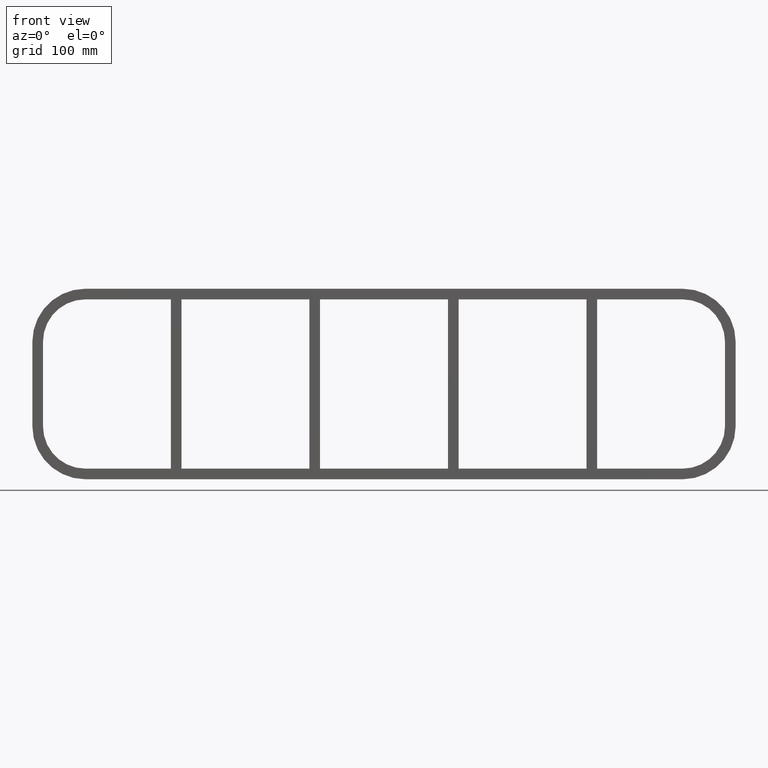
[diagram: clean part render]
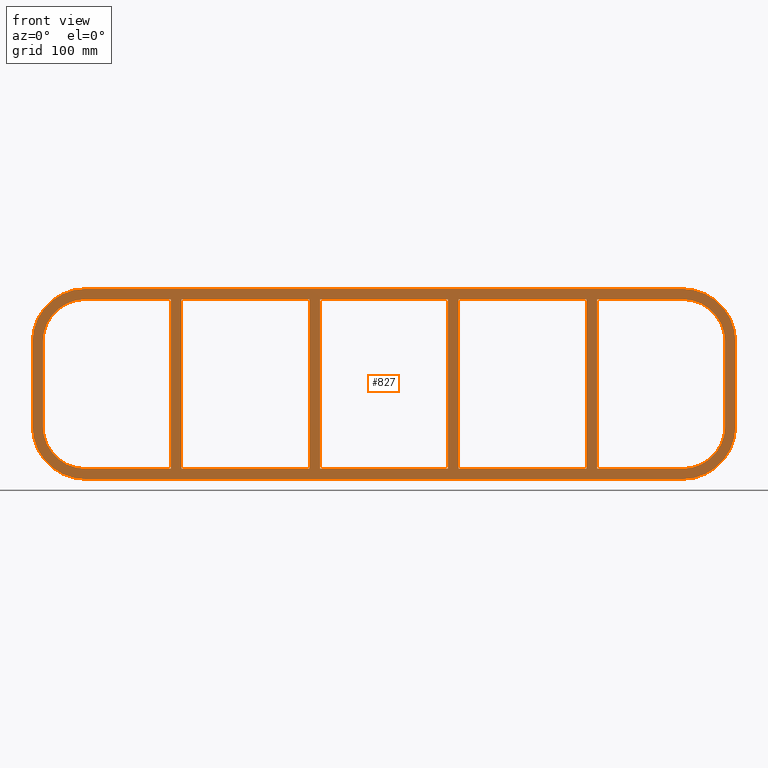
[diagram: same view with one face highlighted and labeled with its STEP entity id]
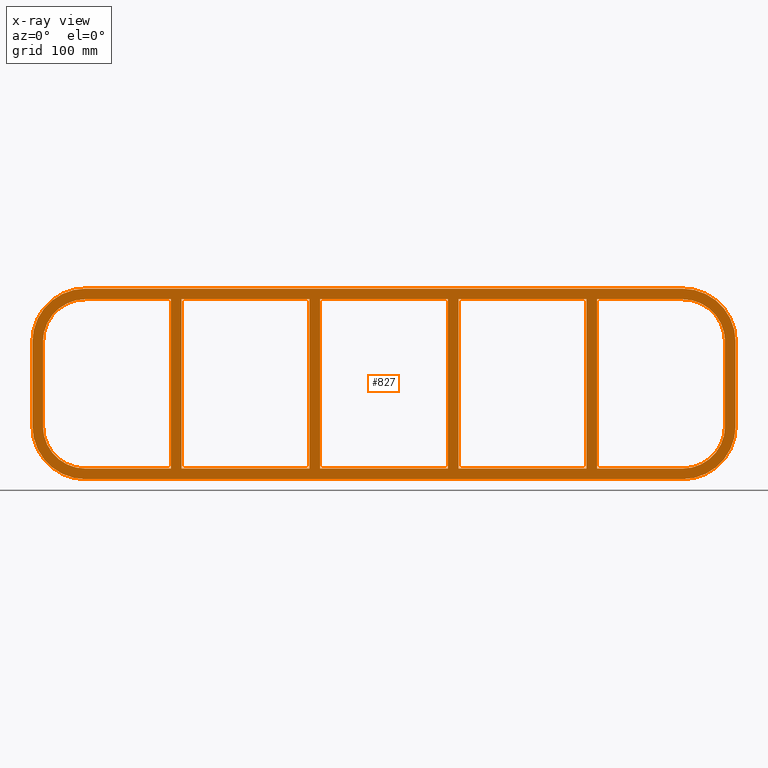
[diagram: x-ray of the same camera — body ghosted, the highlighted face saturated]
A machine part, front view. The second image highlights one B-rep face of the part: STEP entity #827.
The next image is the same camera in x-ray: the body ghosted, the highlighted face saturated — about 0% of this face is hidden behind the body in this view.
In plain terms, the highlighted planar face has unit normal (0, 1, 0).
Its self-contained STEP definition (entity closure, byte-faithful):
#73=CARTESIAN_POINT('',(190.74999999999852,-3.0,-79.750000000000014));
#74=VERTEX_POINT('',#73);
#75=CARTESIAN_POINT('',(190.74999999999852,-3.0,79.750000000000014));
#76=VERTEX_POINT('',#75);
#77=CARTESIAN_POINT('',(190.74999999999852,-3.0,-79.750000000000014));
#78=DIRECTION('',(0.0,0.0,1.0));
#79=VECTOR('',#78,159.50000000000003);
#80=LINE('',#77,#79);
#81=EDGE_CURVE('',#74,#76,#80,.T.);
#113=CARTESIAN_POINT('',(200.74999999999278,-3.0,79.750000000000014));
#114=VERTEX_POINT('',#113);
#115=CARTESIAN_POINT('',(200.74999999999278,-3.0,-79.749999999985107));
#116=VERTEX_POINT('',#115);
#117=CARTESIAN_POINT('',(200.74999999999278,-3.0,79.750000000000014));
#118=DIRECTION('',(0.0,0.0,-1.0));
#119=VECTOR('',#118,159.49999999998514);
#120=LINE('',#117,#119);
#121=EDGE_CURVE('',#114,#116,#120,.T.);
#153=CARTESIAN_POINT('',(60.249999999998494,-3.0,-79.750000000000014));
#154=VERTEX_POINT('',#153);
#155=CARTESIAN_POINT('',(60.249999999998494,-3.0,79.750000000000014));
#156=VERTEX_POINT('',#155);
#157=CARTESIAN_POINT('',(60.249999999998494,-3.0,-79.750000000000014));
#158=DIRECTION('',(0.0,0.0,1.0));
#159=VECTOR('',#158,159.50000000000003);
#160=LINE('',#157,#159);
#161=EDGE_CURVE('',#154,#156,#160,.T.);
#193=CARTESIAN_POINT('',(70.249999999992738,-3.0,79.750000000000014));
#194=VERTEX_POINT('',#193);
#195=CARTESIAN_POINT('',(70.249999999992738,-3.0,-79.749999999985107));
#196=VERTEX_POINT('',#195);
#197=CARTESIAN_POINT('',(70.249999999992738,-3.0,79.750000000000014));
#198=DIRECTION('',(0.0,0.0,-1.0));
#199=VECTOR('',#198,159.49999999998514);
#200=LINE('',#197,#199);
#201=EDGE_CURVE('',#194,#196,#200,.T.);
#233=CARTESIAN_POINT('',(-70.250000000001506,-3.0,-79.750000000000014));
#234=VERTEX_POINT('',#233);
#235=CARTESIAN_POINT('',(-70.250000000001506,-3.0,79.750000000000014));
#236=VERTEX_POINT('',#235);
#237=CARTESIAN_POINT('',(-70.250000000001506,-3.0,-79.750000000000014));
#238=DIRECTION('',(0.0,0.0,1.0));
#239=VECTOR('',#238,159.50000000000003);
#240=LINE('',#237,#239);
#241=EDGE_CURVE('',#234,#236,#240,.T.);
#273=CARTESIAN_POINT('',(-60.250000000007269,-3.0,79.750000000000014));
#274=VERTEX_POINT('',#273);
#275=CARTESIAN_POINT('',(-60.250000000007269,-3.0,-79.749999999985107));
#276=VERTEX_POINT('',#275);
#277=CARTESIAN_POINT('',(-60.250000000007269,-3.0,79.750000000000014));
#278=DIRECTION('',(0.0,0.0,-1.0));
#279=VECTOR('',#278,159.49999999998514);
#280=LINE('',#277,#279);
#281=EDGE_CURVE('',#274,#276,#280,.T.);
#322=CARTESIAN_POINT('',(-190.75000000000728,-3.0,-79.749999999985107));
#323=VERTEX_POINT('',#322);
#330=CARTESIAN_POINT('',(-70.250000000001506,-3.0,-79.750000000000014));
#331=DIRECTION('',(-1.0,0.0,0.0));
#332=VECTOR('',#331,120.50000000000577);
#333=LINE('',#330,#332);
#334=EDGE_CURVE('',#234,#323,#333,.T.);
#352=CARTESIAN_POINT('',(60.249999999998494,-3.0,-79.750000000000014));
#353=DIRECTION('',(-1.0,0.0,0.0));
#354=VECTOR('',#353,120.50000000000577);
#355=LINE('',#352,#354);
#356=EDGE_CURVE('',#154,#276,#355,.T.);
#374=CARTESIAN_POINT('',(190.74999999999852,-3.0,-79.750000000000014));
#375=DIRECTION('',(-1.0,0.0,0.0));
#376=VECTOR('',#375,120.50000000000578);
#377=LINE('',#374,#376);
#378=EDGE_CURVE('',#74,#196,#377,.T.);
#389=CARTESIAN_POINT('',(281.25,-3.0,-79.750000000000014));
#390=VERTEX_POINT('',#389);
#391=CARTESIAN_POINT('',(281.25,-3.0,-79.750000000000014));
#392=DIRECTION('',(-1.0,0.0,0.0));
#393=VECTOR('',#392,80.500000000007219);
#394=LINE('',#391,#393);
#395=EDGE_CURVE('',#390,#116,#394,.T.);
#420=CARTESIAN_POINT('',(-190.75000000000728,-3.0,79.750000000000014));
#421=VERTEX_POINT('',#420);
#422=CARTESIAN_POINT('',(-190.75000000000728,-3.0,79.750000000000014));
#423=DIRECTION('',(1.0,0.0,0.0));
#424=VECTOR('',#423,120.50000000000577);
#425=LINE('',#422,#424);
#426=EDGE_CURVE('',#421,#236,#425,.T.);
#451=CARTESIAN_POINT('',(-60.250000000007276,-3.0,79.750000000000014));
#452=DIRECTION('',(1.0,0.0,0.0));
#453=VECTOR('',#452,120.50000000000577);
#454=LINE('',#451,#453);
#455=EDGE_CURVE('',#274,#156,#454,.T.);
#481=CARTESIAN_POINT('',(281.25,-3.0,79.750000000000014));
#482=VERTEX_POINT('',#481);
#489=CARTESIAN_POINT('',(200.74999999999278,-3.0,79.750000000000014));
#490=DIRECTION('',(1.0,0.0,0.0));
#491=VECTOR('',#490,80.500000000007219);
#492=LINE('',#489,#491);
#493=EDGE_CURVE('',#114,#482,#492,.T.);
#504=CARTESIAN_POINT('',(70.249999999992724,-3.0,79.750000000000014));
#505=DIRECTION('',(1.0,0.0,0.0));
#506=VECTOR('',#505,120.5000000000058);
#507=LINE('',#504,#506);
#508=EDGE_CURVE('',#194,#76,#507,.T.);
#525=CARTESIAN_POINT('',(-200.75000000000153,-3.0,-79.750000000000014));
#526=VERTEX_POINT('',#525);
#527=CARTESIAN_POINT('',(-200.75000000000153,-3.0,79.750000000000014));
#528=VERTEX_POINT('',#527);
#529=CARTESIAN_POINT('',(-200.75000000000153,-3.0,-79.750000000000014));
#530=DIRECTION('',(0.0,0.0,1.0));
#531=VECTOR('',#530,159.50000000000003);
#532=LINE('',#529,#531);
#533=EDGE_CURVE('',#526,#528,#532,.T.);
#565=CARTESIAN_POINT('',(-190.75000000000728,-3.0,79.750000000000014));
#566=DIRECTION('',(0.0,0.0,-1.0));
#567=VECTOR('',#566,159.49999999998514);
#568=LINE('',#565,#567);
#569=EDGE_CURVE('',#421,#323,#568,.T.);
#596=CARTESIAN_POINT('',(-281.25,-3.0,-79.750000000000014));
#597=VERTEX_POINT('',#596);
#604=CARTESIAN_POINT('',(-200.75000000000153,-3.0,-79.750000000000014));
#605=DIRECTION('',(-1.0,0.0,0.0));
#606=VECTOR('',#605,80.499999999998465);
#607=LINE('',#604,#606);
#608=EDGE_CURVE('',#526,#597,#607,.T.);
#619=CARTESIAN_POINT('',(-281.25,-3.0,79.750000000000014));
#620=VERTEX_POINT('',#619);
#621=CARTESIAN_POINT('',(-281.25,-3.0,79.750000000000014));
#622=DIRECTION('',(1.0,0.0,0.0));
#623=VECTOR('',#622,80.499999999998465);
#624=LINE('',#621,#623);
#625=EDGE_CURVE('',#620,#528,#624,.T.);
#660=CARTESIAN_POINT('',(331.25,-3.0,-39.750000000000014));
#661=VERTEX_POINT('',#660);
#668=CARTESIAN_POINT('',(281.25,-3.0,-89.750000000000014));
#669=VERTEX_POINT('',#668);
#670=CARTESIAN_POINT('',(281.25,-3.0,-39.750000000000014));
#671=DIRECTION('',(0.0,1.0,0.0));
#672=DIRECTION('',(0.707106781186547,0.0,-0.707106781186547));
#673=AXIS2_PLACEMENT_3D('',#670,#671,#672);
#674=CIRCLE('',#673,49.999999999999986);
#675=EDGE_CURVE('',#661,#669,#674,.T.);
#686=CARTESIAN_POINT('',(0.0,-3.0,0.0));
#687=DIRECTION('',(0.0,1.0,0.0));
#688=DIRECTION('',(0.0,0.0,1.0));
#689=AXIS2_PLACEMENT_3D('',#686,#687,#688);
#690=PLANE('',#689);
#691=ORIENTED_EDGE('',*,*,#675,.F.);
#692=CARTESIAN_POINT('',(331.25,-3.0,39.750000000000014));
#693=VERTEX_POINT('',#692);
#694=CARTESIAN_POINT('',(331.25,-3.0,-39.750000000000014));
#695=DIRECTION('',(0.0,0.0,1.0));
#696=VECTOR('',#695,79.500000000000028);
#697=LINE('',#694,#696);
#698=EDGE_CURVE('',#661,#693,#697,.T.);
#699=ORIENTED_EDGE('',*,*,#698,.T.);
#700=CARTESIAN_POINT('',(281.25,-3.0,89.750000000000014));
#701=VERTEX_POINT('',#700);
#702=CARTESIAN_POINT('',(281.25,-3.0,39.750000000000014));
#703=DIRECTION('',(0.0,1.0,0.0));
#704=DIRECTION('',(0.707106781186547,0.0,0.707106781186547));
#705=AXIS2_PLACEMENT_3D('',#702,#703,#704);
#706=CIRCLE('',#705,49.999999999999986);
#707=EDGE_CURVE('',#701,#693,#706,.T.);
#708=ORIENTED_EDGE('',*,*,#707,.F.);
#709=CARTESIAN_POINT('',(-281.25,-3.0,89.750000000000014));
#710=VERTEX_POINT('',#709);
#711=CARTESIAN_POINT('',(281.25,-3.0,89.750000000000014));
#712=DIRECTION('',(-1.0,0.0,0.0));
#713=VECTOR('',#712,562.5);
#714=LINE('',#711,#713);
#715=EDGE_CURVE('',#701,#710,#714,.T.);
#716=ORIENTED_EDGE('',*,*,#715,.T.);
#717=CARTESIAN_POINT('',(-331.25,-3.0,39.750000000000014));
#718=VERTEX_POINT('',#717);
#719=CARTESIAN_POINT('',(-281.25,-3.0,39.750000000000014));
#720=DIRECTION('',(0.0,1.0,0.0));
#721=DIRECTION('',(-0.707106781186547,0.0,0.707106781186547));
#722=AXIS2_PLACEMENT_3D('',#719,#720,#721);
#723=CIRCLE('',#722,49.999999999999986);
#724=EDGE_CURVE('',#718,#710,#723,.T.);
#725=ORIENTED_EDGE('',*,*,#724,.F.);
#726=CARTESIAN_POINT('',(-331.25,-3.0,-39.750000000000014));
#727=VERTEX_POINT('',#726);
#728=CARTESIAN_POINT('',(-331.25,-3.0,39.750000000000014));
#729=DIRECTION('',(0.0,0.0,-1.0));
#730=VECTOR('',#729,79.500000000000028);
#731=LINE('',#728,#730);
#732=EDGE_CURVE('',#718,#727,#731,.T.);
#733=ORIENTED_EDGE('',*,*,#732,.T.);
#734=CARTESIAN_POINT('',(-281.25,-3.0,-89.750000000000014));
#735=VERTEX_POINT('',#734);
#736=CARTESIAN_POINT('',(-281.25,-3.0,-39.750000000000014));
#737=DIRECTION('',(0.0,1.0,0.0));
#738=DIRECTION('',(-0.707106781186547,0.0,-0.707106781186547));
#739=AXIS2_PLACEMENT_3D('',#736,#737,#738);
#740=CIRCLE('',#739,49.999999999999986);
#741=EDGE_CURVE('',#735,#727,#740,.T.);
#742=ORIENTED_EDGE('',*,*,#741,.F.);
#743=CARTESIAN_POINT('',(-281.25,-3.0,-89.750000000000014));
#744=DIRECTION('',(1.0,0.0,0.0));
#745=VECTOR('',#744,562.5);
#746=LINE('',#743,#745);
#747=EDGE_CURVE('',#735,#669,#746,.T.);
#748=ORIENTED_EDGE('',*,*,#747,.T.);
#749=EDGE_LOOP('',(#691,#699,#708,#716,#725,#733,#742,#748));
#750=FACE_OUTER_BOUND('',#749,.T.);
#751=ORIENTED_EDGE('',*,*,#378,.T.);
#752=ORIENTED_EDGE('',*,*,#201,.F.);
#753=ORIENTED_EDGE('',*,*,#508,.T.);
#754=ORIENTED_EDGE('',*,*,#81,.F.);
#755=EDGE_LOOP('',(#751,#752,#753,#754));
#756=FACE_BOUND('',#755,.T.);
#757=ORIENTED_EDGE('',*,*,#356,.T.);
#758=ORIENTED_EDGE('',*,*,#281,.F.);
#759=ORIENTED_EDGE('',*,*,#455,.T.);
#760=ORIENTED_EDGE('',*,*,#161,.F.);
#761=EDGE_LOOP('',(#757,#758,#759,#760));
#762=FACE_BOUND('',#761,.T.);
#763=ORIENTED_EDGE('',*,*,#334,.T.);
#764=ORIENTED_EDGE('',*,*,#569,.F.);
#765=ORIENTED_EDGE('',*,*,#426,.T.);
#766=ORIENTED_EDGE('',*,*,#241,.F.);
#767=EDGE_LOOP('',(#763,#764,#765,#766));
#768=FACE_BOUND('',#767,.T.);
#769=ORIENTED_EDGE('',*,*,#608,.T.);
#770=CARTESIAN_POINT('',(-321.25,-3.0,-39.750000000000014));
#771=VERTEX_POINT('',#770);
#772=CARTESIAN_POINT('',(-281.25,-3.0,-39.750000000000014));
#773=DIRECTION('',(0.0,-1.0,0.0));
#774=DIRECTION('',(-0.707106781186547,0.0,-0.707106781186547));
#775=AXIS2_PLACEMENT_3D('',#772,#773,#774);
#776=CIRCLE('',#775,39.999999999999993);
#777=EDGE_CURVE('',#771,#597,#776,.T.);
#778=ORIENTED_EDGE('',*,*,#777,.F.);
#779=CARTESIAN_POINT('',(-321.25,-3.0,39.750000000000014));
#780=VERTEX_POINT('',#779);
#781=CARTESIAN_POINT('',(-321.25,-3.0,-39.750000000000014));
#782=DIRECTION('',(0.0,0.0,1.0));
#783=VECTOR('',#782,79.500000000000028);
#784=LINE('',#781,#783);
#785=EDGE_CURVE('',#771,#780,#784,.T.);
#786=ORIENTED_EDGE('',*,*,#785,.T.);
#787=CARTESIAN_POINT('',(-281.25,-3.0,39.750000000000014));
#788=DIRECTION('',(0.0,-1.0,0.0));
#789=DIRECTION('',(-0.707106781186547,0.0,0.707106781186547));
#790=AXIS2_PLACEMENT_3D('',#787,#788,#789);
#791=CIRCLE('',#790,39.999999999999993);
#792=EDGE_CURVE('',#620,#780,#791,.T.);
#793=ORIENTED_EDGE('',*,*,#792,.F.);
#794=ORIENTED_EDGE('',*,*,#625,.T.);
#795=ORIENTED_EDGE('',*,*,#533,.F.);
#796=EDGE_LOOP('',(#769,#778,#786,#793,#794,#795));
#797=FACE_BOUND('',#796,.T.);
#798=ORIENTED_EDGE('',*,*,#121,.F.);
#799=ORIENTED_EDGE('',*,*,#493,.T.);
#800=CARTESIAN_POINT('',(321.25,-3.0,39.750000000000014));
#801=VERTEX_POINT('',#800);
#802=CARTESIAN_POINT('',(281.25,-3.0,39.750000000000014));
#803=DIRECTION('',(0.0,-1.0,0.0));
#804=DIRECTION('',(0.707106781186547,0.0,0.707106781186547));
#805=AXIS2_PLACEMENT_3D('',#802,#803,#804);
#806=CIRCLE('',#805,39.999999999999993);
#807=EDGE_CURVE('',#801,#482,#806,.T.);
#808=ORIENTED_EDGE('',*,*,#807,.F.);
#809=CARTESIAN_POINT('',(321.25,-3.0,-39.750000000000014));
#810=VERTEX_POINT('',#809);
#811=CARTESIAN_POINT('',(321.25,-3.0,39.750000000000014));
#812=DIRECTION('',(0.0,0.0,-1.0));
#813=VECTOR('',#812,79.500000000000028);
#814=LINE('',#811,#813);
#815=EDGE_CURVE('',#801,#810,#814,.T.);
#816=ORIENTED_EDGE('',*,*,#815,.T.);
#817=CARTESIAN_POINT('',(281.25,-3.0,-39.750000000000014));
#818=DIRECTION('',(0.0,-1.0,0.0));
#819=DIRECTION('',(0.707106781186547,0.0,-0.707106781186547));
#820=AXIS2_PLACEMENT_3D('',#817,#818,#819);
#821=CIRCLE('',#820,39.999999999999993);
#822=EDGE_CURVE('',#390,#810,#821,.T.);
#823=ORIENTED_EDGE('',*,*,#822,.F.);
#824=ORIENTED_EDGE('',*,*,#395,.T.);
#825=EDGE_LOOP('',(#798,#799,#808,#816,#823,#824));
#826=FACE_BOUND('',#825,.T.);
#827=ADVANCED_FACE('',(#750,#756,#762,#768,#797,#826),#690,.F.);